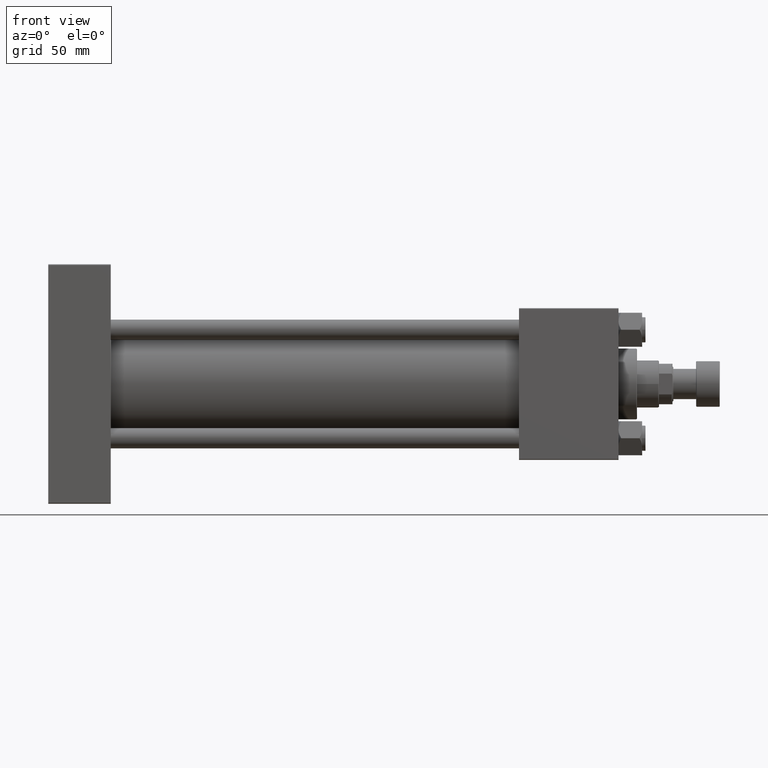
[diagram: clean part render]
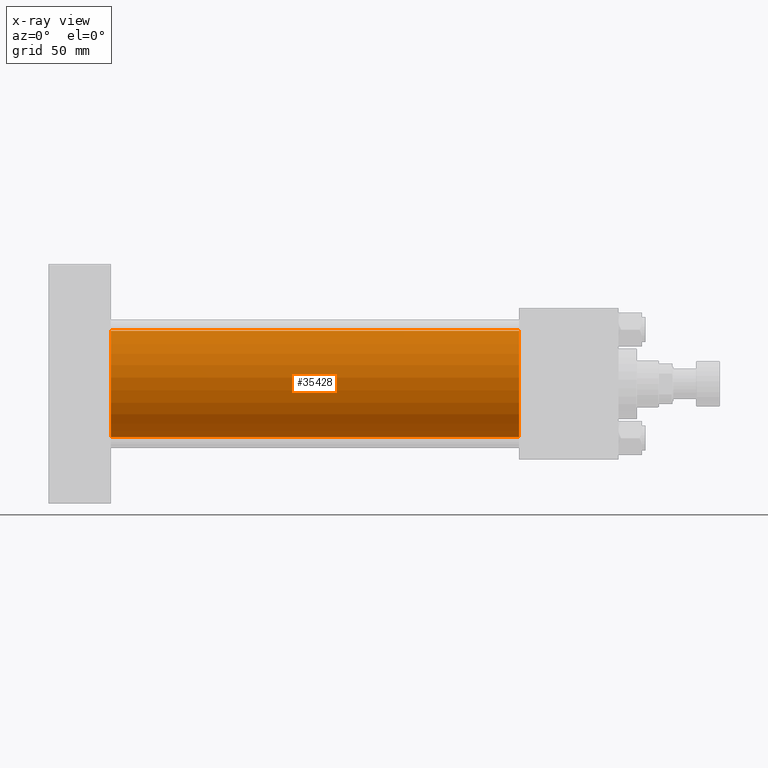
[diagram: x-ray — body ghosted, one internal face saturated and labeled with its STEP entity id]
A machine part, front view, then the same camera in x-ray: the body is ghosted and one INTERNAL B-rep face — a face not visible from any outside direction — is saturated and labeled: STEP entity #35428.
In plain terms, the highlighted cylindrical surface (partial cylindrical patch) has radius 31.5 mm, axis along (-1, -0, -0).
Its self-contained STEP definition (entity closure, byte-faithful):
#46 = CARTESIAN_POINT ( 'NONE',  ( 278.9999999999999432, -2.602085213965210642E-15, 31.50000000000000000 ) ) ;
#755 = DIRECTION ( 'NONE',  ( 0.000000000000000000, 0.000000000000000000, 1.000000000000000000 ) ) ;
#1717 = CIRCLE ( 'NONE', #23839, 31.50000000000000000 ) ;
#1966 = ORIENTED_EDGE ( 'NONE', *, *, #33824, .F. ) ;
#2334 = AXIS2_PLACEMENT_3D ( 'NONE', #10650, #26883, #31125 ) ;
#4705 = DIRECTION ( 'NONE',  ( 0.000000000000000000, 0.000000000000000000, -1.000000000000000000 ) ) ;
#4716 = CARTESIAN_POINT ( 'NONE',  ( 278.9999999999999432, 1.255552203348951850E-15, -31.50000000000000000 ) ) ;
#5675 = LINE ( 'NONE', #13416, #46778 ) ;
#10278 = EDGE_LOOP ( 'NONE', ( #16689, #33954, #1966, #10344 ) ) ;
#10344 = ORIENTED_EDGE ( 'NONE', *, *, #44135, .F. ) ;
#10650 = CARTESIAN_POINT ( 'NONE',  ( 278.9999999999999432, -2.602085213965210642E-15, 0.000000000000000000 ) ) ;
#13416 = CARTESIAN_POINT ( 'NONE',  ( 278.9999999999999432, -2.602085213965210642E-15, 31.50000000000000000 ) ) ;
#14926 = VERTEX_POINT ( 'NONE', #38716 ) ;
#16689 = ORIENTED_EDGE ( 'NONE', *, *, #26103, .T. ) ;
#21924 = DIRECTION ( 'NONE',  ( -1.000000000000000000, -0.000000000000000000, -0.000000000000000000 ) ) ;
#22148 = EDGE_CURVE ( 'NONE', #49779, #14926, #44094, .T. ) ;
#23839 = AXIS2_PLACEMENT_3D ( 'NONE', #38186, #33686, #4705 ) ;
#25275 = CIRCLE ( 'NONE', #2334, 31.50000000000000000 ) ;
#26103 = EDGE_CURVE ( 'NONE', #43184, #49779, #25275, .T. ) ;
#26883 = DIRECTION ( 'NONE',  ( 1.000000000000000000, 0.000000000000000000, 0.000000000000000000 ) ) ;
#28457 = VERTEX_POINT ( 'NONE', #50499 ) ;
#28950 = FACE_OUTER_BOUND ( 'NONE', #10278, .T. ) ;
#31125 = DIRECTION ( 'NONE',  ( 0.000000000000000000, 0.000000000000000000, -1.000000000000000000 ) ) ;
#31189 = VECTOR ( 'NONE', #36630, 1000.000000000000000 ) ;
#33686 = DIRECTION ( 'NONE',  ( 1.000000000000000000, 0.000000000000000000, 0.000000000000000000 ) ) ;
#33824 = EDGE_CURVE ( 'NONE', #28457, #14926, #1717, .T. ) ;
#33954 = ORIENTED_EDGE ( 'NONE', *, *, #22148, .T. ) ;
#35428 = ADVANCED_FACE ( 'NONE', ( #28950 ), #37155, .F. ) ;
#36630 = DIRECTION ( 'NONE',  ( -1.000000000000000000, -0.000000000000000000, -0.000000000000000000 ) ) ;
#37155 = CYLINDRICAL_SURFACE ( 'NONE', #44250, 31.50000000000000000 ) ;
#38186 = CARTESIAN_POINT ( 'NONE',  ( 37.00000000000000000, -2.602085213965210642E-15, 0.000000000000000000 ) ) ;
#38716 = CARTESIAN_POINT ( 'NONE',  ( 37.00000000000000000, 1.255552203348951850E-15, -31.50000000000000000 ) ) ;
#43184 = VERTEX_POINT ( 'NONE', #46 ) ;
#44094 = LINE ( 'NONE', #4716, #31189 ) ;
#44135 = EDGE_CURVE ( 'NONE', #43184, #28457, #5675, .T. ) ;
#44250 = AXIS2_PLACEMENT_3D ( 'NONE', #48876, #44882, #755 ) ;
#44882 = DIRECTION ( 'NONE',  ( -1.000000000000000000, -0.000000000000000000, -0.000000000000000000 ) ) ;
#46638 = CARTESIAN_POINT ( 'NONE',  ( 278.9999999999999432, 1.255552203348951850E-15, -31.50000000000000000 ) ) ;
#46778 = VECTOR ( 'NONE', #21924, 1000.000000000000000 ) ;
#48876 = CARTESIAN_POINT ( 'NONE',  ( 278.9999999999999432, -2.602085213965210642E-15, 0.000000000000000000 ) ) ;
#49779 = VERTEX_POINT ( 'NONE', #46638 ) ;
#50499 = CARTESIAN_POINT ( 'NONE',  ( 37.00000000000000000, -2.602085213965210642E-15, 31.50000000000000000 ) ) ;